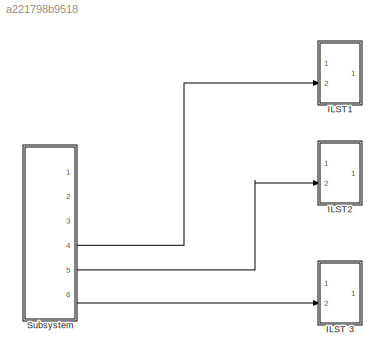
MODEL slx_a221798b9518
KIND model
CONFIG AbsTol = auto
CONFIG EnableMultiTasking = off
CONFIG FixedStep = auto
CONFIG MaxStep = auto
CONFIG MinStep = auto
CONFIG RelTol = 1e-3
CONFIG SampleTimeConstraint = Unconstrained
CONFIG SolverName = VariableStepAuto
CONFIG StartTime = 0.0
CONFIG StopTime = 10.0
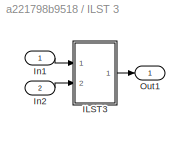
BLOCK [SubSystem] ILST 3
  Ports = [2, 1]
  RequestExecContextInheritance = off
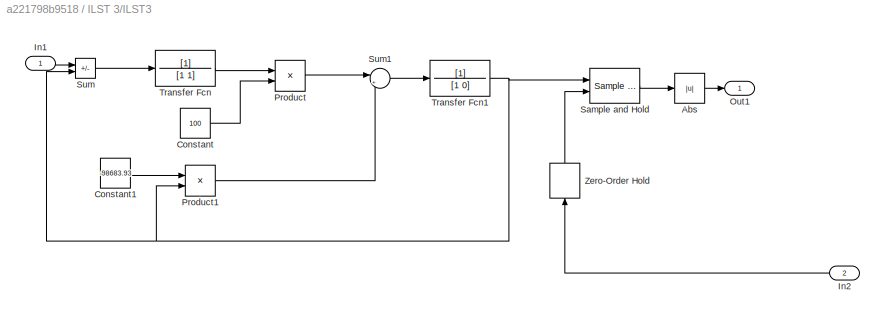
BLOCK [SubSystem] ILST 3/ILST3
  Ports = [2, 1]
  RequestExecContextInheritance = off
BLOCK [Abs] ILST 3/ILST3/Abs
  SaturateOnIntegerOverflow = off
BLOCK [Constant] ILST 3/ILST3/Constant
  Value = 100
BLOCK [Constant] ILST 3/ILST3/Constant1
  Value = -98683.93
BLOCK [Inport] ILST 3/ILST3/In1
BLOCK [Inport] ILST 3/ILST3/In2
  Port = 2
BLOCK [Outport] ILST 3/ILST3/Out1
BLOCK [Product] ILST 3/ILST3/Product
  Ports = [2, 1]
BLOCK [Product] ILST 3/ILST3/Product1
  Ports = [2, 1]
BLOCK [Reference] ILST 3/ILST3/Sample and Hold  REF=spsSampleandHoldLib/Sample and
Hold
  Ports = [2, 1]
  SourceBlock = spsSampleandHoldLib/Sample and\nHold
  SourceProductBaseCode = PS
  SourceType = Sample and Hold
BLOCK [Sum] ILST 3/ILST3/Sum
  IconShape = rectangular
  Inputs = +-
  Ports = [2, 1]
BLOCK [Sum] ILST 3/ILST3/Sum1
  Inputs = |++
  Ports = [2, 1]
BLOCK [TransferFcn] ILST 3/ILST3/Transfer Fcn
  Denominator = [1 1]
BLOCK [TransferFcn] ILST 3/ILST3/Transfer Fcn1
  Denominator = [1 0]
BLOCK [ZeroOrderHold] ILST 3/ILST3/Zero-Order Hold
  NameLocation = right
  SampleTime = -1
BLOCK [Inport] ILST 3/In1
BLOCK [Inport] ILST 3/In2
  Port = 2
BLOCK [Outport] ILST 3/Out1
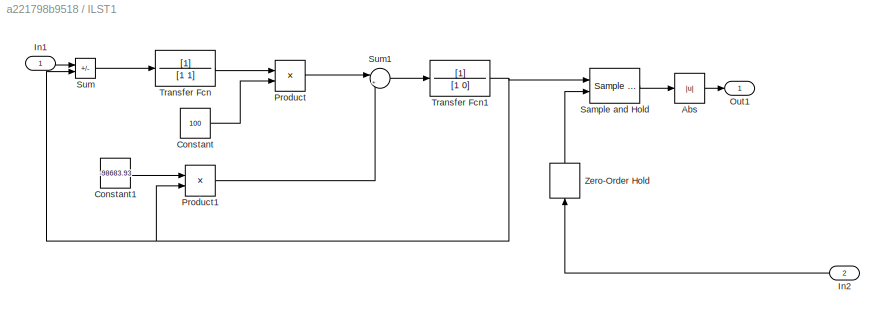
BLOCK [SubSystem] ILST1
  Ports = [2, 1]
  RequestExecContextInheritance = off
BLOCK [Abs] ILST1/Abs
  SaturateOnIntegerOverflow = off
BLOCK [Constant] ILST1/Constant
  Value = 100
BLOCK [Constant] ILST1/Constant1
  Value = -98683.93
BLOCK [Inport] ILST1/In1
BLOCK [Inport] ILST1/In2
  Port = 2
BLOCK [Outport] ILST1/Out1
BLOCK [Product] ILST1/Product
  Ports = [2, 1]
BLOCK [Product] ILST1/Product1
  Ports = [2, 1]
BLOCK [Reference] ILST1/Sample and Hold  REF=spsSampleandHoldLib/Sample and
Hold
  Ports = [2, 1]
  SourceBlock = spsSampleandHoldLib/Sample and\nHold
  SourceProductBaseCode = PS
  SourceType = Sample and Hold
BLOCK [Sum] ILST1/Sum
  IconShape = rectangular
  Inputs = +-
  Ports = [2, 1]
BLOCK [Sum] ILST1/Sum1
  Inputs = |++
  Ports = [2, 1]
BLOCK [TransferFcn] ILST1/Transfer Fcn
  Denominator = [1 1]
BLOCK [TransferFcn] ILST1/Transfer Fcn1
  Denominator = [1 0]
BLOCK [ZeroOrderHold] ILST1/Zero-Order Hold
  NameLocation = right
  SampleTime = -1
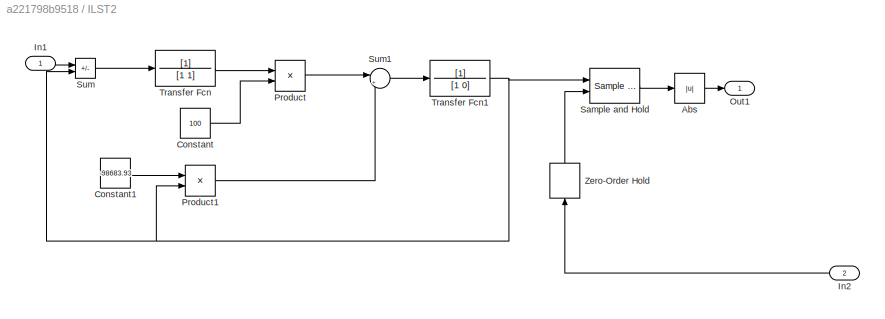
BLOCK [SubSystem] ILST2
  Ports = [2, 1]
  RequestExecContextInheritance = off
BLOCK [Abs] ILST2/Abs
  SaturateOnIntegerOverflow = off
BLOCK [Constant] ILST2/Constant
  Value = 100
BLOCK [Constant] ILST2/Constant1
  Value = -98683.93
BLOCK [Inport] ILST2/In1
BLOCK [Inport] ILST2/In2
  Port = 2
BLOCK [Outport] ILST2/Out1
BLOCK [Product] ILST2/Product
  Ports = [2, 1]
BLOCK [Product] ILST2/Product1
  Ports = [2, 1]
BLOCK [Reference] ILST2/Sample and Hold  REF=spsSampleandHoldLib/Sample and
Hold
  Ports = [2, 1]
  SourceBlock = spsSampleandHoldLib/Sample and\nHold
  SourceProductBaseCode = PS
  SourceType = Sample and Hold
BLOCK [Sum] ILST2/Sum
  IconShape = rectangular
  Inputs = +-
  Ports = [2, 1]
BLOCK [Sum] ILST2/Sum1
  Inputs = |++
  Ports = [2, 1]
BLOCK [TransferFcn] ILST2/Transfer Fcn
  Denominator = [1 1]
BLOCK [TransferFcn] ILST2/Transfer Fcn1
  Denominator = [1 0]
BLOCK [ZeroOrderHold] ILST2/Zero-Order Hold
  NameLocation = right
  SampleTime = -1
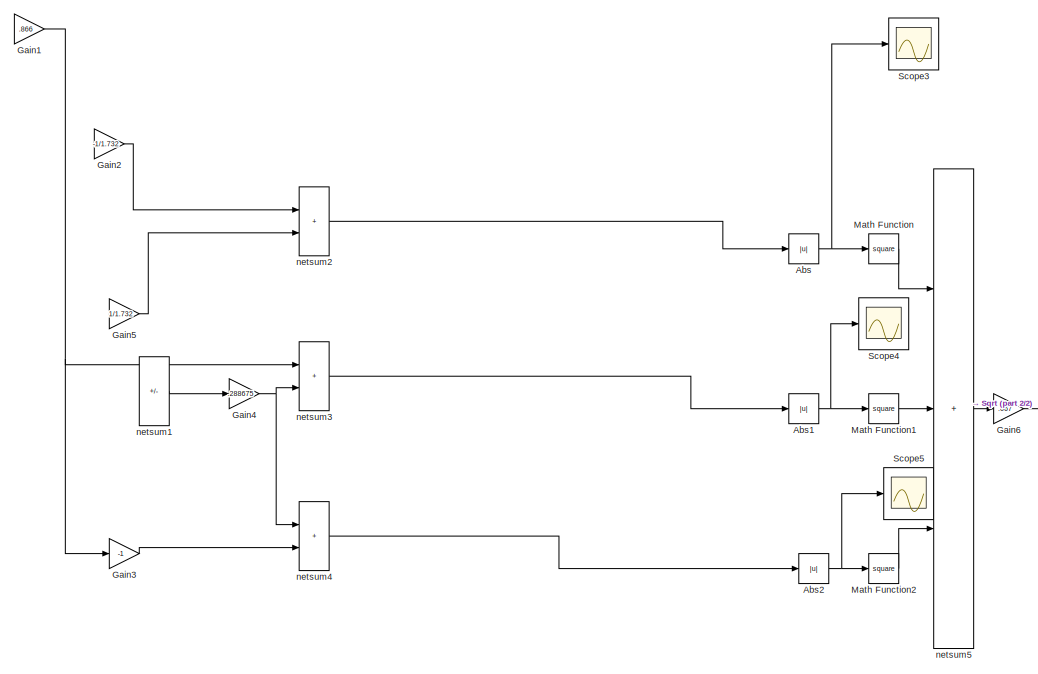
[diagram: Subsystem - part 1/2, middle left region]
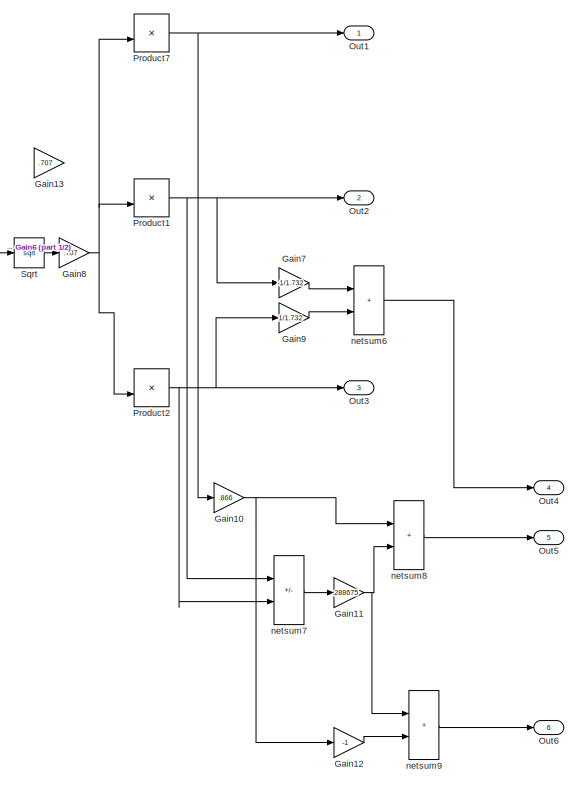
[diagram: Subsystem - part 2/2, right side, full height]
BLOCK [SubSystem] Subsystem
  Ports = [0, 6]
  RequestExecContextInheritance = off
BLOCK [Abs] Subsystem/Abs
  SaturateOnIntegerOverflow = off
BLOCK [Abs] Subsystem/Abs1
  SaturateOnIntegerOverflow = off
BLOCK [Abs] Subsystem/Abs2
  SaturateOnIntegerOverflow = off
BLOCK [Gain] Subsystem/Gain1
  Gain = .866
BLOCK [Gain] Subsystem/Gain10
  Gain = .866
BLOCK [Gain] Subsystem/Gain11
  Gain = .288675
BLOCK [Gain] Subsystem/Gain12
  Gain = -1
BLOCK [Gain] Subsystem/Gain13
  Gain = .707
BLOCK [Gain] Subsystem/Gain2
  Gain = -1/1.732
BLOCK [Gain] Subsystem/Gain3
  Gain = -1
BLOCK [Gain] Subsystem/Gain4
  Gain = .288675
BLOCK [Gain] Subsystem/Gain5
  Gain = 1/1.732
BLOCK [Gain] Subsystem/Gain6
  Gain = .667
BLOCK [Gain] Subsystem/Gain7
  Gain = -1/1.732
BLOCK [Gain] Subsystem/Gain8
  Gain = .707
BLOCK [Gain] Subsystem/Gain9
  Gain = 1/1.732
BLOCK [Math] Subsystem/Math Function
  Operator = square
  Ports = [1, 1]
  SignedPower = on
BLOCK [Math] Subsystem/Math Function1
  Operator = square
  Ports = [1, 1]
  SignedPower = on
BLOCK [Math] Subsystem/Math Function2
  Operator = square
  Ports = [1, 1]
  SignedPower = on
BLOCK [Outport] Subsystem/Out1
BLOCK [Outport] Subsystem/Out2
  Port = 2
BLOCK [Outport] Subsystem/Out3
  Port = 3
BLOCK [Outport] Subsystem/Out4
  Port = 4
BLOCK [Outport] Subsystem/Out5
  Port = 5
BLOCK [Outport] Subsystem/Out6
  Port = 6
BLOCK [Product] Subsystem/Product1
  Inputs = */
  Ports = [2, 1]
  RndMeth = Zero
BLOCK [Product] Subsystem/Product2
  Inputs = */
  Ports = [2, 1]
  RndMeth = Zero
BLOCK [Product] Subsystem/Product7
  Inputs = */
  Ports = [2, 1]
  RndMeth = Zero
BLOCK [Scope] Subsystem/Scope3
  Floating = off
  NumInputPorts = 1
  Ports = [1]
  ScopeSpecificationString = Simulink.scopes.TimeScopeBlockCfg('CurrentConfiguration', extmgr.ConfigurationSet(extmgr.Configuration('Core','General UI',true),extmgr.Configuration('Core','Source UI',true),extmgr.Configuration('Sources','WiredSimulink',true,'DataLogging',true,'DataLoggingVariableName','ScopeData3','DataLoggingSaveFormat','StructureWithTime','DataLoggingDecimation','1','DataLoggingDecimateData',true),extmgr.Conf...<+1671ch>
BLOCK [Scope] Subsystem/Scope4
  Floating = off
  NumInputPorts = 1
  Ports = [1]
  ScopeSpecificationString = Simulink.scopes.TimeScopeBlockCfg('CurrentConfiguration', extmgr.ConfigurationSet(extmgr.Configuration('Core','General UI',true),extmgr.Configuration('Core','Source UI',true),extmgr.Configuration('Sources','WiredSimulink',true,'DataLogging',true,'DataLoggingVariableName','ScopeData4','DataLoggingSaveFormat','StructureWithTime','DataLoggingDecimation','1','DataLoggingDecimateData',true),extmgr.Conf...<+1671ch>
BLOCK [Scope] Subsystem/Scope5
  Floating = off
  NumInputPorts = 1
  Ports = [1]
  ScopeSpecificationString = Simulink.scopes.TimeScopeBlockCfg('CurrentConfiguration', extmgr.ConfigurationSet(extmgr.Configuration('Core','General UI',true),extmgr.Configuration('Core','Source UI',true),extmgr.Configuration('Sources','WiredSimulink',true,'DataLogging',true,'DataLoggingSaveFormat','StructureWithTime','DataLoggingDecimation','1','DataLoggingDecimateData',true),extmgr.Configuration('Visuals','Time Domain',true,...<+1632ch>
BLOCK [Sqrt] Subsystem/Sqrt
BLOCK [Sum] Subsystem/netsum1
  IconShape = rectangular
  InputSameDT = on
  Inputs = +-
  OutDataTypeStr = Inherit: Same as first input
  Ports = [2, 1]
  SaturateOnIntegerOverflow = on
BLOCK [Sum] Subsystem/netsum2
  IconShape = rectangular
  InputSameDT = on
  OutDataTypeStr = Inherit: Same as first input
  Ports = [2, 1]
  SaturateOnIntegerOverflow = on
BLOCK [Sum] Subsystem/netsum3
  IconShape = rectangular
  InputSameDT = on
  OutDataTypeStr = Inherit: Same as first input
  Ports = [2, 1]
  SaturateOnIntegerOverflow = on
BLOCK [Sum] Subsystem/netsum4
  IconShape = rectangular
  InputSameDT = on
  OutDataTypeStr = Inherit: Same as first input
  Ports = [2, 1]
  SaturateOnIntegerOverflow = on
BLOCK [Sum] Subsystem/netsum5
  IconShape = rectangular
  InputSameDT = on
  Inputs = +++
  OutDataTypeStr = Inherit: Same as first input
  Ports = [3, 1]
  SaturateOnIntegerOverflow = on
BLOCK [Sum] Subsystem/netsum6
  IconShape = rectangular
  InputSameDT = on
  OutDataTypeStr = Inherit: Same as first input
  Ports = [2, 1]
  SaturateOnIntegerOverflow = on
BLOCK [Sum] Subsystem/netsum7
  IconShape = rectangular
  InputSameDT = on
  Inputs = +-
  OutDataTypeStr = Inherit: Same as first input
  Ports = [2, 1]
  SaturateOnIntegerOverflow = on
BLOCK [Sum] Subsystem/netsum8
  IconShape = rectangular
  InputSameDT = on
  OutDataTypeStr = Inherit: Same as first input
  Ports = [2, 1]
  SaturateOnIntegerOverflow = on
BLOCK [Sum] Subsystem/netsum9
  IconShape = rectangular
  InputSameDT = on
  OutDataTypeStr = Inherit: Same as first input
  Ports = [2, 1]
  SaturateOnIntegerOverflow = on
LINE ILST 3/ILST3/Abs:1 -> ILST 3/ILST3/Out1:1
LINE ILST 3/ILST3/Constant1:1 -> ILST 3/ILST3/Product1:1
LINE ILST 3/ILST3/Constant:1 -> ILST 3/ILST3/Product:2
LINE ILST 3/ILST3/In1:1 -> ILST 3/ILST3/Sum:1
LINE ILST 3/ILST3/In2:1 -> ILST 3/ILST3/Zero-Order Hold:1
LINE ILST 3/ILST3/Product1:1 -> ILST 3/ILST3/Sum1:2
LINE ILST 3/ILST3/Product:1 -> ILST 3/ILST3/Sum1:1
LINE ILST 3/ILST3/Sample and Hold:1 -> ILST 3/ILST3/Abs:1
LINE ILST 3/ILST3/Sum1:1 -> ILST 3/ILST3/Transfer Fcn1:1
LINE ILST 3/ILST3/Sum:1 -> ILST 3/ILST3/Transfer Fcn:1
NET ILST 3/ILST3/Transfer Fcn1:1 -> ILST 3/ILST3/Product1:2, ILST 3/ILST3/Sample and Hold:1, ILST 3/ILST3/Sum:2
LINE ILST 3/ILST3/Transfer Fcn:1 -> ILST 3/ILST3/Product:1
LINE ILST 3/ILST3/Zero-Order Hold:1 -> ILST 3/ILST3/Sample and Hold:2
LINE ILST 3/ILST3:1 -> ILST 3/Out1:1
LINE ILST 3/In1:1 -> ILST 3/ILST3:1
LINE ILST 3/In2:1 -> ILST 3/ILST3:2
LINE ILST1/Abs:1 -> ILST1/Out1:1
LINE ILST1/Constant1:1 -> ILST1/Product1:1
LINE ILST1/Constant:1 -> ILST1/Product:2
LINE ILST1/In1:1 -> ILST1/Sum:1
LINE ILST1/In2:1 -> ILST1/Zero-Order Hold:1
LINE ILST1/Product1:1 -> ILST1/Sum1:2
LINE ILST1/Product:1 -> ILST1/Sum1:1
LINE ILST1/Sample and Hold:1 -> ILST1/Abs:1
LINE ILST1/Sum1:1 -> ILST1/Transfer Fcn1:1
LINE ILST1/Sum:1 -> ILST1/Transfer Fcn:1
NET ILST1/Transfer Fcn1:1 -> ILST1/Product1:2, ILST1/Sample and Hold:1, ILST1/Sum:2
LINE ILST1/Transfer Fcn:1 -> ILST1/Product:1
LINE ILST1/Zero-Order Hold:1 -> ILST1/Sample and Hold:2
LINE ILST2/Abs:1 -> ILST2/Out1:1
LINE ILST2/Constant1:1 -> ILST2/Product1:1
LINE ILST2/Constant:1 -> ILST2/Product:2
LINE ILST2/In1:1 -> ILST2/Sum:1
LINE ILST2/In2:1 -> ILST2/Zero-Order Hold:1
LINE ILST2/Product1:1 -> ILST2/Sum1:2
LINE ILST2/Product:1 -> ILST2/Sum1:1
LINE ILST2/Sample and Hold:1 -> ILST2/Abs:1
LINE ILST2/Sum1:1 -> ILST2/Transfer Fcn1:1
LINE ILST2/Sum:1 -> ILST2/Transfer Fcn:1
NET ILST2/Transfer Fcn1:1 -> ILST2/Product1:2, ILST2/Sample and Hold:1, ILST2/Sum:2
LINE ILST2/Transfer Fcn:1 -> ILST2/Product:1
LINE ILST2/Zero-Order Hold:1 -> ILST2/Sample and Hold:2
NET Subsystem/Abs1:1 -> Subsystem/Math Function1:1, Subsystem/Scope4:1
NET Subsystem/Abs2:1 -> Subsystem/Math Function2:1, Subsystem/Scope5:1
NET Subsystem/Abs:1 -> Subsystem/Math Function:1, Subsystem/Scope3:1
NET Subsystem/Gain10:1 -> Subsystem/Gain12:1, Subsystem/netsum8:1
NET Subsystem/Gain11:1 -> Subsystem/netsum8:2, Subsystem/netsum9:1
LINE Subsystem/Gain12:1 -> Subsystem/netsum9:2
NET Subsystem/Gain1:1 -> Subsystem/Gain3:1, Subsystem/netsum3:1
LINE Subsystem/Gain2:1 -> Subsystem/netsum2:1
LINE Subsystem/Gain3:1 -> Subsystem/netsum4:2
NET Subsystem/Gain4:1 -> Subsystem/netsum3:2, Subsystem/netsum4:1
LINE Subsystem/Gain5:1 -> Subsystem/netsum2:2
LINE Subsystem/Gain6:1 -> Subsystem/Sqrt:1
LINE Subsystem/Gain7:1 -> Subsystem/netsum6:1
NET Subsystem/Gain8:1 -> Subsystem/Product1:2, Subsystem/Product2:2, Subsystem/Product7:2
LINE Subsystem/Gain9:1 -> Subsystem/netsum6:2
LINE Subsystem/Math Function1:1 -> Subsystem/netsum5:2
LINE Subsystem/Math Function2:1 -> Subsystem/netsum5:3
LINE Subsystem/Math Function:1 -> Subsystem/netsum5:1
NET Subsystem/Product1:1 -> Subsystem/Gain7:1, Subsystem/Out2:1, Subsystem/netsum7:1
NET Subsystem/Product2:1 -> Subsystem/Gain9:1, Subsystem/Out3:1, Subsystem/netsum7:2
NET Subsystem/Product7:1 -> Subsystem/Gain10:1, Subsystem/Out1:1
LINE Subsystem/Sqrt:1 -> Subsystem/Gain8:1
LINE Subsystem/netsum1:1 -> Subsystem/Gain4:1
LINE Subsystem/netsum2:1 -> Subsystem/Abs:1
LINE Subsystem/netsum3:1 -> Subsystem/Abs1:1
LINE Subsystem/netsum4:1 -> Subsystem/Abs2:1
LINE Subsystem/netsum5:1 -> Subsystem/Gain6:1
LINE Subsystem/netsum6:1 -> Subsystem/Out4:1
LINE Subsystem/netsum7:1 -> Subsystem/Gain11:1
LINE Subsystem/netsum8:1 -> Subsystem/Out5:1
LINE Subsystem/netsum9:1 -> Subsystem/Out6:1
LINE Subsystem:4 -> ILST1:2
LINE Subsystem:5 -> ILST2:2
LINE Subsystem:6 -> ILST 3:2
note: NET lines group one-source signal fan-out (src -> all destinations, sorted); 1:1 wires keep LINE
